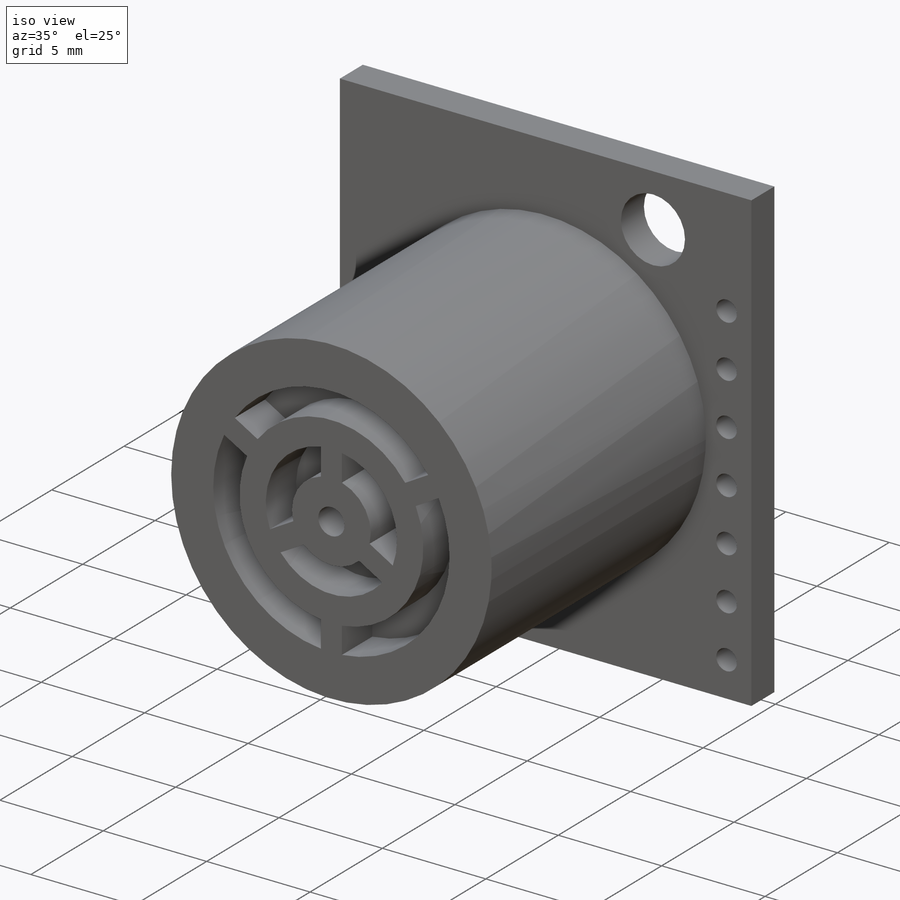
[diagram: iso view]
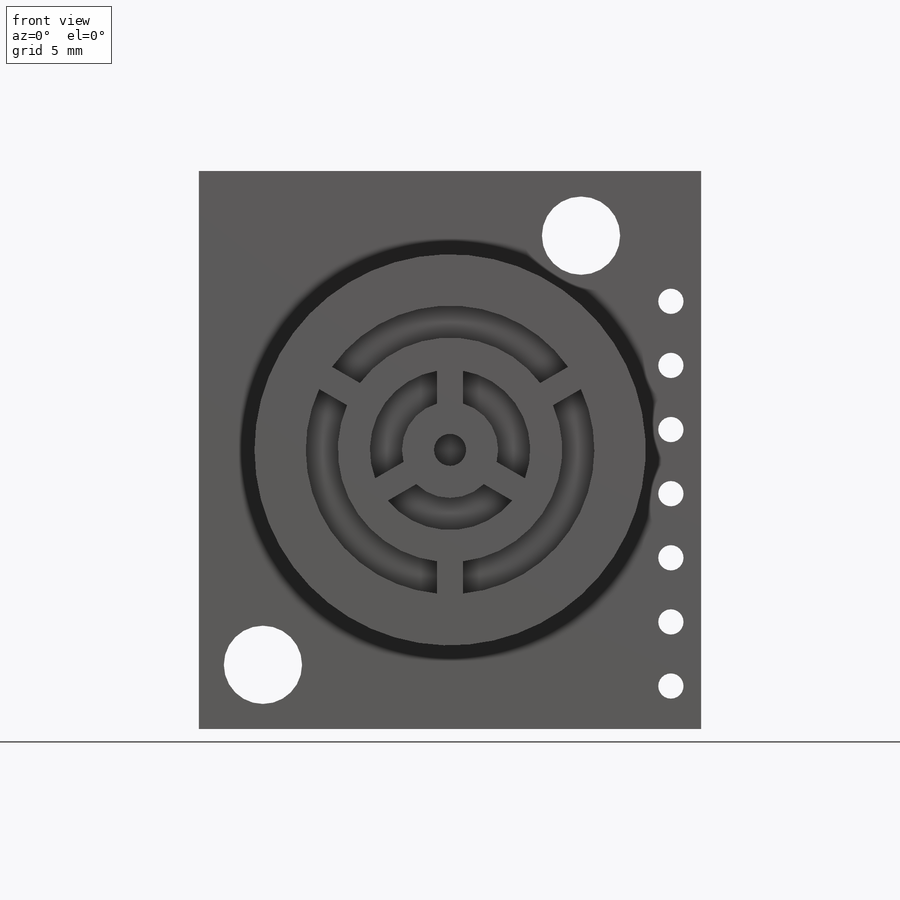
[diagram: front view]
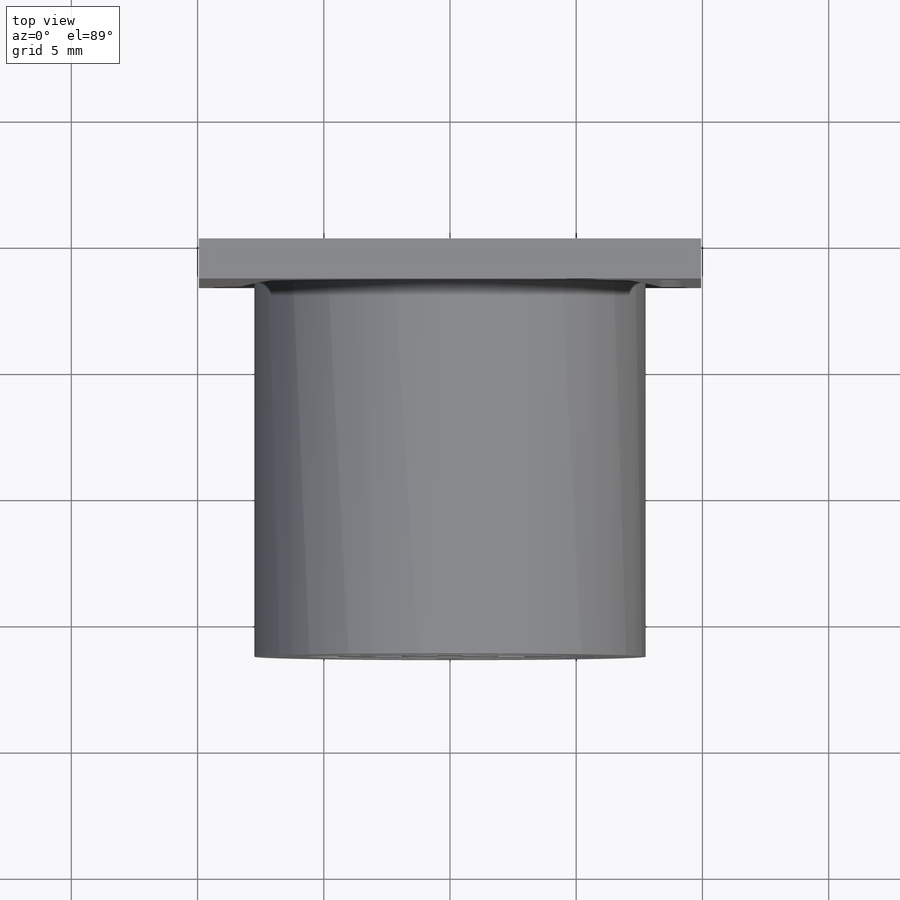
[diagram: top view]
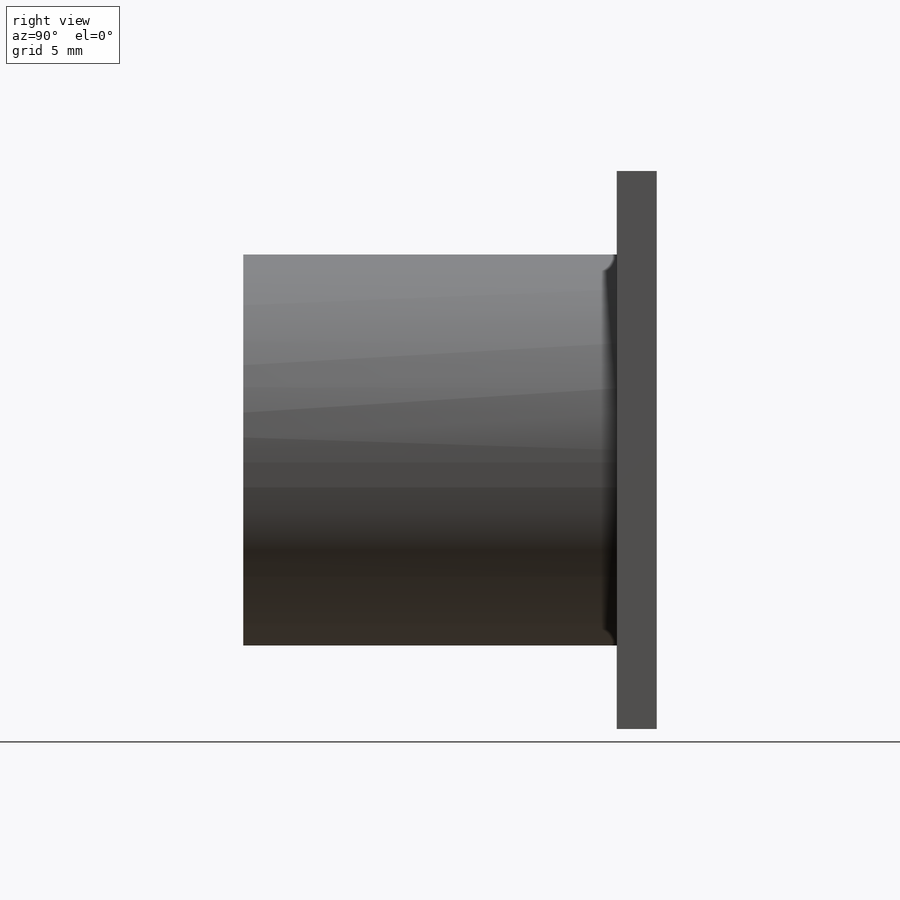
[diagram: right view]
SOLIDWORKS PART (.sldprt)
format: sldprt  version: not decoded by parser v0  size: 308,224 bytes
history: native  units: mm
features: sketch x6, cut_extrude x3, extrude x2, material x1, revolve x1 (+16 scaffold rows collapsed)
feature tree (29):
  scaffold x16  (default folders/planes/origin — collapsed)
  material  "Material <not specified>"
  sketch  "Sketch1"  dims[D1=19.9mm D2=22.1mm]
  extrude  "Extrude1"  Depth=1.5875mm
  sketch  "Sketch2"  dims[D1=15.494mm]
  extrude  "Extrude2"  Depth=14.7955mm
  sketch  "Sketch3"  dims[c1.D6=1.27mm c1.D7=~5.702537mm c2.D7=60.0deg c2.D1=1.27mm c2.D2=1.27mm c2.D3=1.27mm c2.D4=1.27mm c2.D5=1.27mm c3.D7=0.508mm c3.D8=0.508mm c3.D9=0.508mm]
  cut_extrude  "Extrude3"  Depth=2.0955mm
  sketch  "Sketch4"  dims[c1.D1=~19.48433mm c2.D1=36.0deg c2.D2=381.0mm]
  revolve  "Revolve1"  Angle=360deg
  sketch  "Sketch5"  dims[c1.D1=3.1mm c1.D2=3.1mm c1.D3=3.1mm c1.D4=3.1mm c1.D5=3.1mm c2.D2=12.6mm c2.D3=2.54mm c2.D4=17.0mm c2.D5=2.54mm]
  cut_extrude  "Cut-Extrude1"  [1 undecoded]
  sketch  "Sketch6"  dims[c1.D2=1.0mm c1.D5=1.0mm c1.D1=18.7mm c1.D4=1.7mm c2.D5=2.54mm c2.D3=7.0]
  cut_extrude  "Cut-Extrude2"  [1 undecoded]
decode coverage: 10 of 12 modeling features carry decoded parameters
note: ~ marks probable driven/reference dimensions
note: 2 parameter values undecoded
note: suppression state not decoded; provenance and decode notes live in map.json
